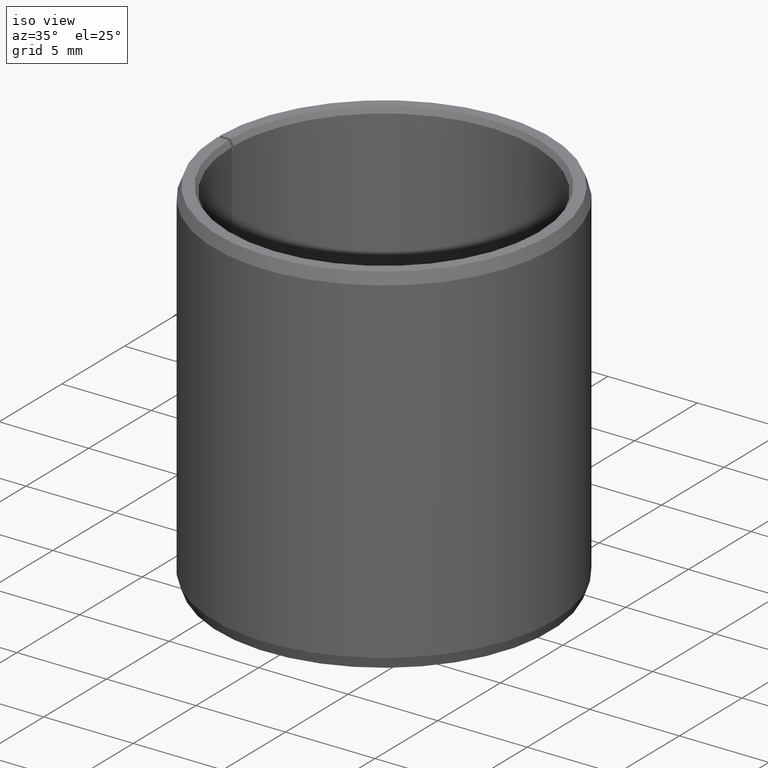
[diagram: clean part render]
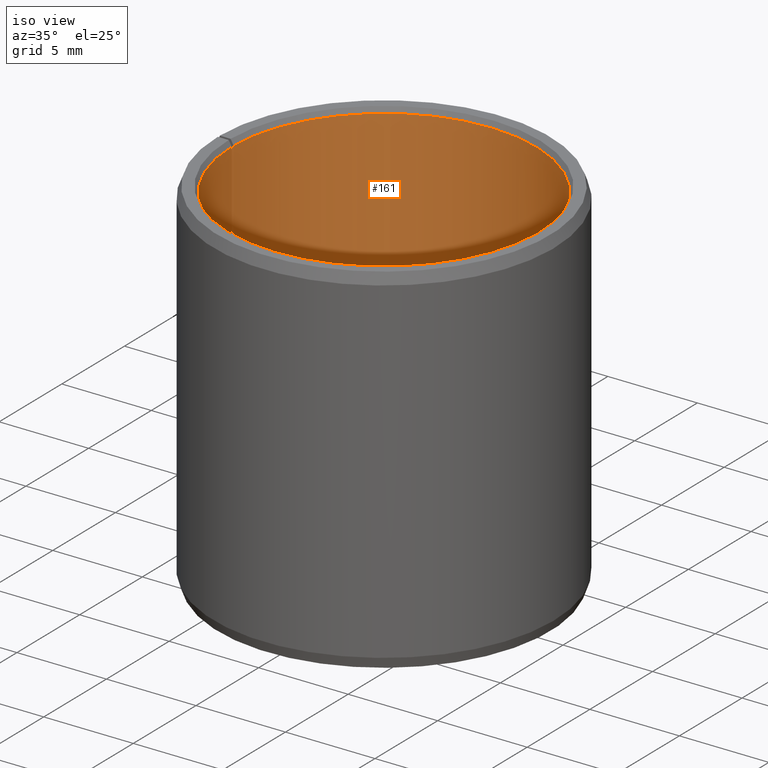
[diagram: same view with one face highlighted and labeled with its STEP entity id]
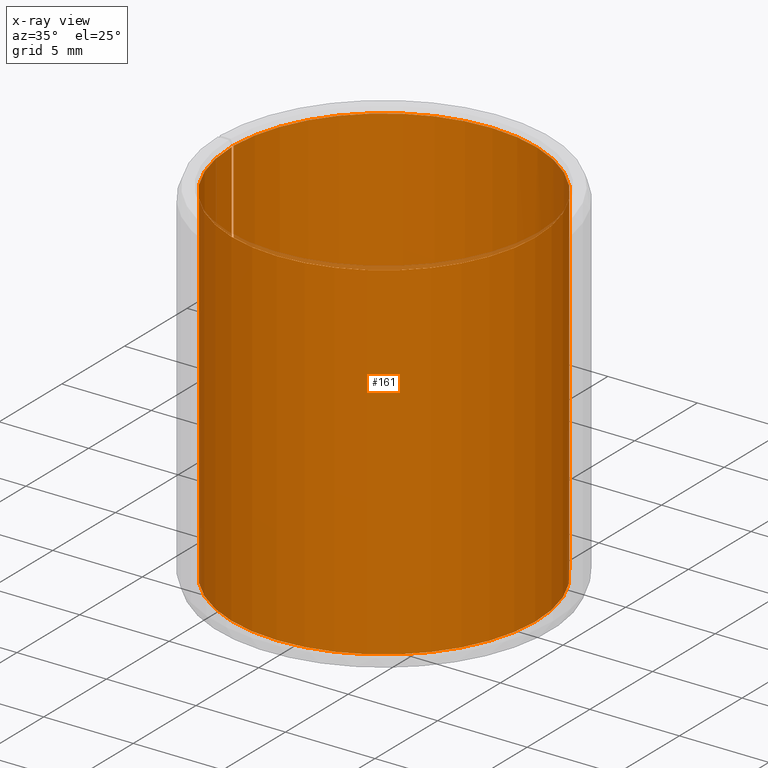
[diagram: x-ray of the same camera — body ghosted, the highlighted face saturated]
A machine part, iso view. The second image highlights one B-rep face of the part: STEP entity #161.
The next image is the same camera in x-ray: the body ghosted, the highlighted face saturated — about 1% of this face is hidden behind the body in this view.
In plain terms, the highlighted cylindrical surface (partial cylindrical patch) has radius 8.5 mm, axis along (-0, 0, -1).
Its self-contained STEP definition (entity closure, byte-faithful):
#161=ADVANCED_FACE('',(#182,#183),#184,.F.);
#182=FACE_OUTER_BOUND('',#208,.T.);
#183=FACE_BOUND('',#209,.T.);
#184=CYLINDRICAL_SURFACE('',#210,0.0085);
#208=EDGE_LOOP('',(#281,#282,#283,#284));
#209=EDGE_LOOP('',(#285));
#210=AXIS2_PLACEMENT_3D('',#286,#287,#288);
#281=ORIENTED_EDGE('',*,*,#304,.T.);
#282=ORIENTED_EDGE('',*,*,#322,.F.);
#283=ORIENTED_EDGE('',*,*,#319,.F.);
#284=ORIENTED_EDGE('',*,*,#325,.T.);
#285=ORIENTED_EDGE('',*,*,#326,.T.);
#286=CARTESIAN_POINT('',(-6.93889390390723E-018,-6.93889390390723E-018,0.0));
#287=DIRECTION('',(6.12323399573677E-017,0.0,-1.0));
#288=DIRECTION('',(-1.0,0.0,-6.12323399573677E-017));
#304=EDGE_CURVE('',#333,#331,#334,.T.);
#319=EDGE_CURVE('',#359,#360,#361,.T.);
#322=EDGE_CURVE('',#360,#331,#364,.T.);
#325=EDGE_CURVE('',#359,#333,#367,.T.);
#326=EDGE_CURVE('',#368,#368,#369,.T.);
#331=VERTEX_POINT('',#375);
#333=VERTEX_POINT('',#378);
#334=CIRCLE('',#379,0.0085);
#359=VERTEX_POINT('',#413);
#360=VERTEX_POINT('',#414);
#361=CIRCLE('',#415,0.0085);
#364=LINE('',#420,#421);
#367=LINE('',#426,#427);
#368=VERTEX_POINT('',#428);
#369=B_SPLINE_CURVE_WITH_KNOTS('',3,(#429,#430,#431,#432,#433,#434,#435,#436,#437,#438,#439,#440,#441,#442,#443,#444,#445,#446,#447,#448,#449,#450,#451,#452,#453,#454,#455,#456,#457,#458,#459,#460,#461,#462,#463,#464,#465,#466,#467,#468,#469,#470,#471,#472,#473,#474,#475,#476,#477,#478,#479,#480,#481,#482),.UNSPECIFIED.,.T.,.F.,(2,2,2,2,2,2,2,2,2,2,2,2,2,2,2,2,2,2,2,2,2,2,2,2,2,2,2,2,2),(-0.000392130648972248,0.0,0.000392130648972245,0.00078426129794449,0.00117639194691674,0.00156852259588898,0.00235278389383347,0.00274491454280572,0.00313704519177797,0.00352917584075021,0.00392130648972246,0.00470556778766696,0.00509769843663921,0.00548982908561146,0.00588195973458371,0.00627409038355596,0.00705835168150045,0.0074504823304727,0.00784261297944495,0.00823474362841719,0.00862687427738944,0.00941113557533394,0.00980326622430618,0.0101953968732784,0.0109796581712229,0.0117639194691674,0.0121560501181396,0.0125481807671119,0.0129403114160841),.UNSPECIFIED.);
#375=CARTESIAN_POINT('',(-6.93889390390723E-018,0.0085,0.0003));
#378=CARTESIAN_POINT('',(0.000148345454716904,0.00849870540882932,0.0003));
#379=AXIS2_PLACEMENT_3D('',#542,#543,#544);
#413=CARTESIAN_POINT('',(0.000148345454716902,0.00849870540882932,0.0197));
#414=CARTESIAN_POINT('',(-8.67361737988404E-018,0.0085,0.0197));
#415=AXIS2_PLACEMENT_3D('',#569,#570,#571);
#420=CARTESIAN_POINT('',(-8.67361737988404E-018,0.0085,0.0197));
#421=VECTOR('',#574,1.0);
#426=CARTESIAN_POINT('',(0.000148345454716902,0.00849870540882932,0.0197));
#427=VECTOR('',#577,1.0);
#428=CARTESIAN_POINT('',(0.00605128791936626,-0.00596924739954141,0.01));
#429=CARTESIAN_POINT('',(0.00605128791936626,-0.00596924739954141,0.0101326300495121));
#430=CARTESIAN_POINT('',(0.00605128791936626,-0.00596924739954141,0.00986736995048787));
#431=CARTESIAN_POINT('',(0.00606075190660702,-0.00595969592197073,0.00973705282044995));
#432=CARTESIAN_POINT('',(0.00609744831417399,-0.00592214599716792,0.00948082440571805));
#433=CARTESIAN_POINT('',(0.00612514232217834,-0.00589366470314775,0.00935355674978138));
#434=CARTESIAN_POINT('',(0.00619610537298328,-0.00581901454775272,0.00911160176056763));
#435=CARTESIAN_POINT('',(0.0062390887029513,-0.00577314868125431,0.00899691967197587));
#436=CARTESIAN_POINT('',(0.00633863395333815,-0.00566367311422116,0.00877987948968845));
#437=CARTESIAN_POINT('',(0.00639548726638319,-0.00559968107463609,0.00867749526455098));
#438=CARTESIAN_POINT('',(0.00657734775952636,-0.00538732201549916,0.00840186802131529));
#439=CARTESIAN_POINT('',(0.00671838971299242,-0.00521263239489055,0.00825300273933793));
#440=CARTESIAN_POINT('',(0.00693218753002888,-0.004920299813374,0.00810313160861428));
#441=CARTESIAN_POINT('',(0.00700493940434094,-0.00481638344888828,0.00806446565475928));
#442=CARTESIAN_POINT('',(0.00714822547711601,-0.00460104315492944,0.00801289733189056));
#443=CARTESIAN_POINT('',(0.00721782900167535,-0.00449111263303328,0.00800008072019332));
#444=CARTESIAN_POINT('',(0.00735275097206848,-0.00426663817574948,0.00799992003267006));
#445=CARTESIAN_POINT('',(0.00741861539795898,-0.00415098502388569,0.00801301770499162));
#446=CARTESIAN_POINT('',(0.00754077046746997,-0.00392470531993042,0.00806425435075001));
#447=CARTESIAN_POINT('',(0.00759766854837766,-0.0038131724129343,0.00810215849750155));
#448=CARTESIAN_POINT('',(0.00775696045338443,-0.0034841023824956,0.00825310800139503));
#449=CARTESIAN_POINT('',(0.00784399861340388,-0.00327979713696828,0.00840022399141423));
#450=CARTESIAN_POINT('',(0.0079470587852551,-0.00301713482303766,0.0086784074184219));
#451=CARTESIAN_POINT('',(0.00797624678715302,-0.00293852627045677,0.00877886610276999));
#452=CARTESIAN_POINT('',(0.00802608056325134,-0.00279955000739983,0.00899502354069977));
#453=CARTESIAN_POINT('',(0.00804685953460417,-0.00273873887146016,0.00911213376785764));
#454=CARTESIAN_POINT('',(0.00807937443150176,-0.0026412776778091,0.00935359348332474));
#455=CARTESIAN_POINT('',(0.00809131926333239,-0.00260408433149366,0.00947825558169333));
#456=CARTESIAN_POINT('',(0.00810740331793531,-0.00255356888824957,0.0097356042546279));
#457=CARTESIAN_POINT('',(0.00811142319829333,-0.00254063253962684,0.00986837707381594));
#458=CARTESIAN_POINT('',(0.00811147409621693,-0.00254047003510961,0.0102607147483269));
#459=CARTESIAN_POINT('',(0.00809567274230487,-0.00259240089416434,0.0105247844613286));
#460=CARTESIAN_POINT('',(0.00804713415096325,-0.00273792747220254,0.0108861185974771));
#461=CARTESIAN_POINT('',(0.00802647047096328,-0.0027984387928087,0.0110030635266799));
#462=CARTESIAN_POINT('',(0.00797647626886923,-0.00293790984043214,0.011220357457772));
#463=CARTESIAN_POINT('',(0.00794729496336893,-0.00301649322855567,0.0113207515708125));
#464=CARTESIAN_POINT('',(0.00787907180972562,-0.00319044762531819,0.0115053059568984));
#465=CARTESIAN_POINT('',(0.00783976845579477,-0.00328632224273839,0.0115894774653465));
#466=CARTESIAN_POINT('',(0.00775291110746127,-0.00348629497940086,0.0117342092200346));
#467=CARTESIAN_POINT('',(0.00770503478889729,-0.00359128573447079,0.0117958664316531));
#468=CARTESIAN_POINT('',(0.00754561231562008,-0.00392088154389879,0.0119476277416594));
#469=CARTESIAN_POINT('',(0.00742242211414251,-0.00415057979009107,0.0119998476506563));
#470=CARTESIAN_POINT('',(0.00721856185374282,-0.00448996441214126,0.0120000756770734));
#471=CARTESIAN_POINT('',(0.00714891567381471,-0.00459994764156631,0.0119872159980365));
#472=CARTESIAN_POINT('',(0.00700659373539046,-0.00481395449123197,0.0119362625986542));
#473=CARTESIAN_POINT('',(0.00693324822811895,-0.00491881662942581,0.0118975198552577));
#474=CARTESIAN_POINT('',(0.00671866388634905,-0.00521232267696378,0.0117473720809414));
#475=CARTESIAN_POINT('',(0.00657778929067078,-0.00538678126779979,0.0115986315827459));
#476=CARTESIAN_POINT('',(0.00633539512267365,-0.0056698759262602,0.0112315981564984));
#477=CARTESIAN_POINT('',(0.00623176316324189,-0.00578149332449594,0.0110094708025118));
#478=CARTESIAN_POINT('',(0.00612568448866985,-0.00589309968024061,0.0106485425276252));
#479=CARTESIAN_POINT('',(0.00609781151106953,-0.00592177317827132,0.0105212769448927));
#480=CARTESIAN_POINT('',(0.00606075480178775,-0.00595969412235498,0.0102633977448249));
#481=CARTESIAN_POINT('',(0.00605128791936626,-0.00596924739954141,0.0101326300495121));
#482=CARTESIAN_POINT('',(0.00605128791936626,-0.00596924739954141,0.00986736995048787));
#542=CARTESIAN_POINT('',(-6.93889390390723E-018,-6.93889390390723E-018,0.0003));
#543=DIRECTION('',(6.12323399573677E-017,0.0,-1.0));
#544=DIRECTION('',(-1.0,0.0,-6.12323399573677E-017));
#569=CARTESIAN_POINT('',(-8.67361737988404E-018,-6.93889390390723E-018,0.0197));
#570=DIRECTION('',(6.12323399573677E-017,0.0,-1.0));
#571=DIRECTION('',(-1.0,0.0,-6.12323399573677E-017));
#574=DIRECTION('',(8.94187358750932E-017,0.0,-1.0));
#577=DIRECTION('',(8.9414442950471E-017,-4.91920437558335E-019,-1.0));